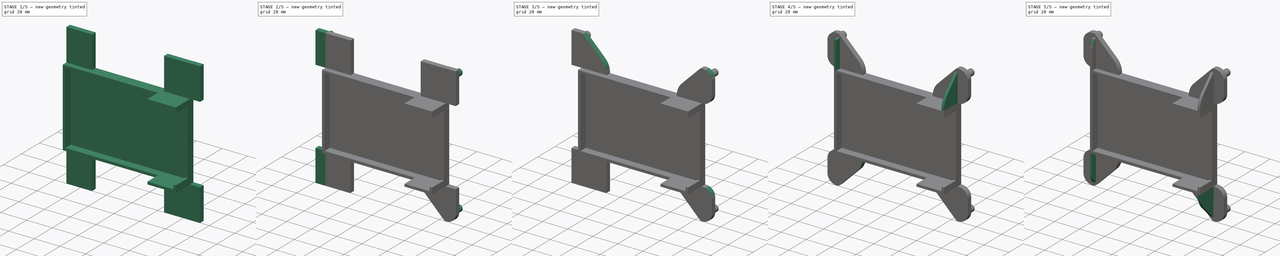
[diagram: build sequence overview — one tinted view per stage of 5, left to right]
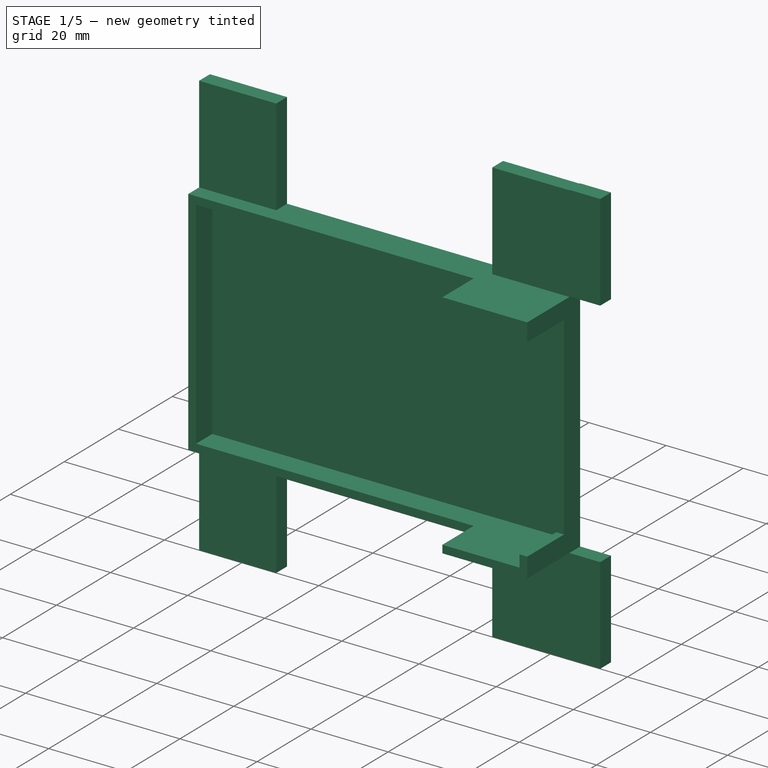
[diagram: stage 1 of 5 — iso view after this stage's code; geometry added in this stage tinted green]
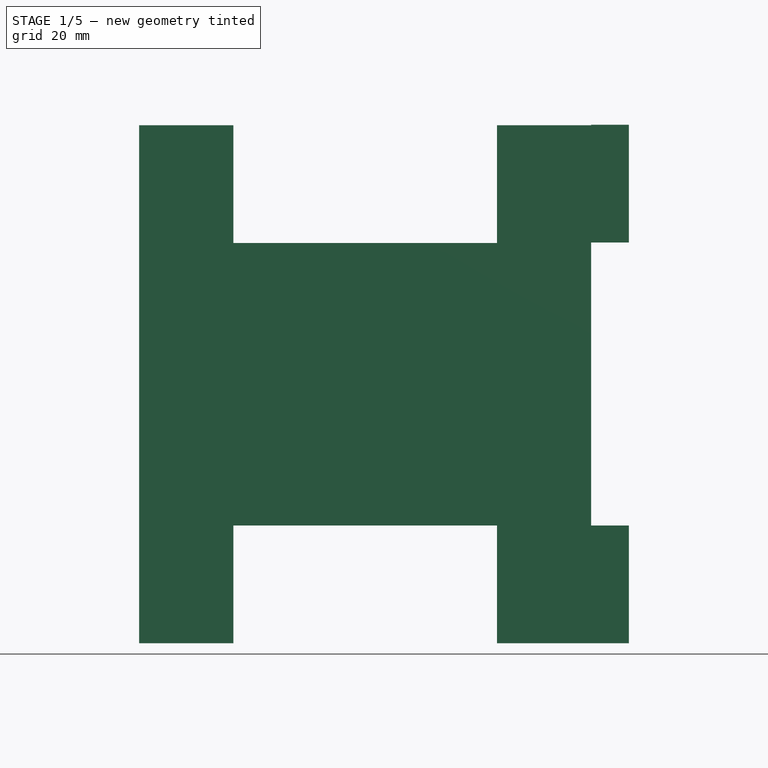
[diagram: stage 1 of 5 — front view after this stage's code; geometry added in this stage tinted green]
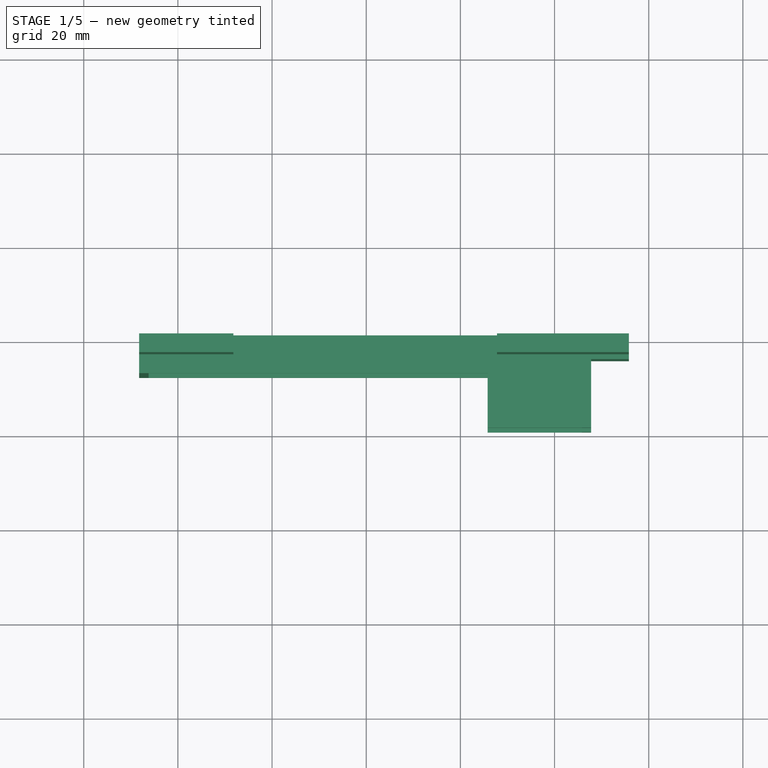
[diagram: stage 1 of 5 — top view after this stage's code; geometry added in this stage tinted green]
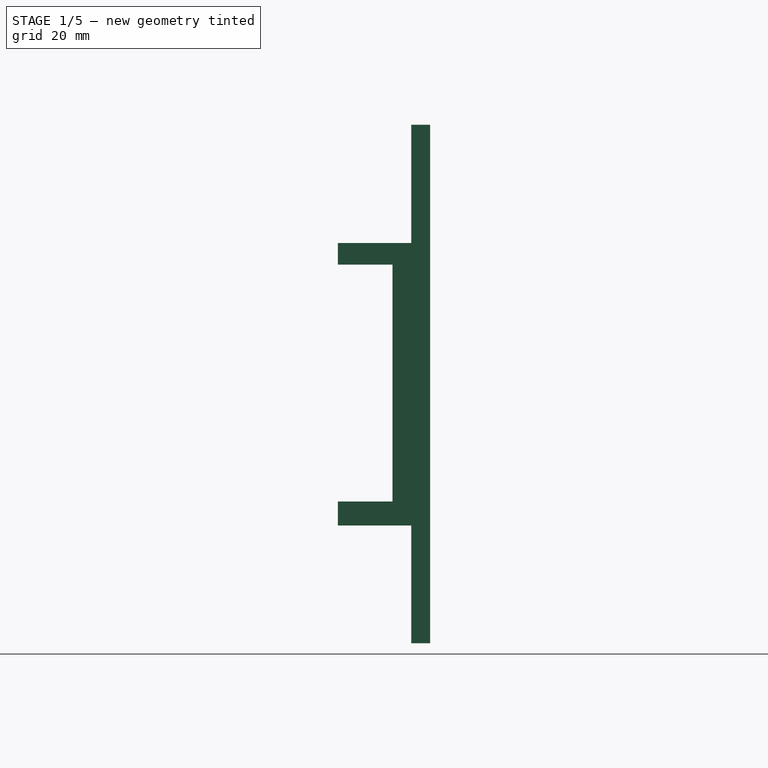
[diagram: stage 1 of 5 — right view after this stage's code; geometry added in this stage tinted green]
FCSTD DOCUMENT  (FreeCAD 0.19R24291 (Git))
Label: case_mount_prot_3
License: All rights reserved
LicenseURL: http://en.wikipedia.org/wiki/All_rights_reserved
objects: PartDesign::Fillet×26, Sketcher::SketchObject×13, PartDesign::Pad×8, PartDesign::Chamfer×8, PartDesign::Pocket×5, PartDesign::Body×1
note: 108 computed .brp shape members not serialized (recipe doc carries the construction recipe); baked Part::Feature solids carry a one-line shape summary decoded from their .brp

FEATURE [Sketcher::SketchObject] Sketch
  FullyConstrained = false
  MapMode = 5
  Placement = pos=(0,0,0) rot=(1,0,0;1.5708rad)
  Support = -> [XZ_Plane]
  sketch-geometry (4):
    g0: LineSegment StartX=-48.227 StartY=-0.10394 StartZ=0 EndX=47.773 EndY=-0.10394 EndZ=0
    g1: LineSegment StartX=47.773 StartY=-0.10394 StartZ=0 EndX=47.773 EndY=-60.1039 EndZ=0
    g2: LineSegment StartX=47.773 StartY=-60.1039 StartZ=0 EndX=-48.227 EndY=-60.1039 EndZ=0
    g3: LineSegment StartX=-48.227 StartY=-60.1039 StartZ=0 EndX=-48.227 EndY=-0.10394 EndZ=0
  constraints (10):
    c: Coincident(g0,g1)
    c: Coincident(g1,g2)
    c: Coincident(g2,g3)
    c: Coincident(g3,g0)
    c: Horizontal(g0)
    c: Horizontal(g2)
    c: Vertical(g1)
    c: Vertical(g3)
    c: DistanceX(g0,g0) = 96
    c: DistanceY(g1,g1) = 60
FEATURE [PartDesign::Pad] Pad
  Direction = (1,1,1)
  Length = 30
  Length2 = 100
  Placement = pos=(0,0,0) rot=(1,0,0;1.5708rad)
  Profile = -> Sketch
  Type = 0
FEATURE [Sketcher::SketchObject] Sketch001
  ExternalGeometry = -> [Pad]
  FullyConstrained = true
  MapMode = 5
  Placement = pos=(0,-30,2e-14) rot=(1,0,0;1.5708rad)
  Support = -> [Pad]
  sketch-geometry (4):
    g0: LineSegment StartX=-46.227 StartY=-2.10394 StartZ=0 EndX=45.773 EndY=-2.10394 EndZ=0
    g1: LineSegment StartX=45.773 StartY=-2.10394 StartZ=0 EndX=45.773 EndY=-58.1039 EndZ=0
    g2: LineSegment StartX=45.773 StartY=-58.1039 StartZ=0 EndX=-46.227 EndY=-58.1039 EndZ=0
    g3: LineSegment StartX=-46.227 StartY=-58.1039 StartZ=0 EndX=-46.227 EndY=-2.10394 EndZ=0
  constraints (12):
    c: Coincident(g0,g1)
    c: Coincident(g1,g2)
    c: Coincident(g2,g3)
    c: Coincident(g3,g0)
    c: Horizontal(g0)
    c: Horizontal(g2)
    c: Vertical(g1)
    c: Vertical(g3)
    c: DistanceY(g0,g-3) = 2
    c: DistanceX(g0,g-3) = 2
    c: DistanceX(g-3,g0) = 2
    c: DistanceY(g-4,g2) = 2
FEATURE [PartDesign::Pocket] Pocket
  BaseFeature = -> Pad
  Length = 28
  Length2 = 100
  Placement = pos=(0,0,0) rot=(1,0,0;1.5708rad)
  Profile = -> Sketch001
  Type = 0
FEATURE [Sketcher::SketchObject] Sketch002
  ExternalGeometry = -> [Pocket]
  FullyConstrained = true
  MapMode = 5
  Placement = pos=(0,-6.67e-14,-60.1039) rot=(1,0,0;3.14159rad)
  Support = -> [Pocket]
  sketch-geometry (4):
    g0: LineSegment StartX=-48.227 StartY=30 StartZ=0 EndX=25.773 EndY=30 EndZ=0
    g1: LineSegment StartX=25.773 StartY=30 StartZ=0 EndX=25.773 EndY=8 EndZ=0
    g2: LineSegment StartX=25.773 StartY=8 StartZ=0 EndX=-48.227 EndY=8 EndZ=0
    g3: LineSegment StartX=-48.227 StartY=8 StartZ=0 EndX=-48.227 EndY=30 EndZ=0
  constraints (12):
    c: Coincident(g0,g1)
    c: Coincident(g1,g2)
    c: Coincident(g2,g3)
    c: Coincident(g3,g0)
    c: Horizontal(g0)
    c: Horizontal(g2)
    c: Vertical(g1)
    c: Vertical(g3)
    c: DistanceY(g0,g-3) = 0
    c: DistanceX(g-4,g2) = 0
    c: DistanceY(g-4,g2) = 8
    c: DistanceX(g0,g-3) = 22
FEATURE [PartDesign::Pocket] Pocket001
  BaseFeature = -> Pocket
  Length = 60
  Length2 = 100
  Placement = pos=(0,0,0) rot=(1,0,0;1.5708rad)
  Profile = -> Sketch002
  Type = 0
FEATURE [Sketcher::SketchObject] Sketch003
  ExternalGeometry = -> [Pocket001]
  FullyConstrained = true
  MapMode = 5
  Placement = pos=(0,-9.34e-14,-60.1039) rot=(1,0,0;3.14159rad)
  Support = -> [Pocket001]
  sketch-geometry (4):
    g0: LineSegment StartX=25.773 StartY=30 StartZ=0 EndX=47.773 EndY=30 EndZ=0
    g1: LineSegment StartX=47.773 StartY=30 StartZ=0 EndX=47.773 EndY=26 EndZ=0
    g2: LineSegment StartX=47.773 StartY=26 StartZ=0 EndX=25.773 EndY=26 EndZ=0
    g3: LineSegment StartX=25.773 StartY=26 StartZ=0 EndX=25.773 EndY=30 EndZ=0
  constraints (12):
    c: Coincident(g0,g1)
    c: Coincident(g1,g2)
    c: Coincident(g2,g3)
    c: Coincident(g3,g0)
    c: Horizontal(g0)
    c: Horizontal(g2)
    c: Vertical(g1)
    c: Vertical(g3)
    c: DistanceY(g1,g1) = 4
    c: DistanceY(g0,g-3) = 0
    c: DistanceX(g-3,g0) = 0
    c: DistanceX(g0,g-3) = 0
FEATURE [PartDesign::Pocket] Pocket002
  BaseFeature = -> Pocket001
  Length = 60
  Length2 = 100
  Placement = pos=(0,0,0) rot=(1,0,0;1.5708rad)
  Profile = -> Sketch003
  Type = 0
FEATURE [Sketcher::SketchObject] Sketch004
  ExternalGeometry = -> [Pocket002]
  FullyConstrained = true
  MapMode = 5
  Placement = pos=(47.773,0,0) rot=(0.707107,0,0.707107;3.14159rad)
  Support = -> [Pocket002]
  sketch-geometry (4):
    g0: LineSegment StartX=-55.0039 StartY=19.6 StartZ=0 EndX=-4.70394 EndY=19.6 EndZ=0
    g1: LineSegment StartX=-4.70394 StartY=19.6 StartZ=0 EndX=-4.70394 EndY=6 EndZ=0
    g2: LineSegment StartX=-4.70394 StartY=6 StartZ=0 EndX=-55.0039 EndY=6 EndZ=0
    g3: LineSegment StartX=-55.0039 StartY=6 StartZ=0 EndX=-55.0039 EndY=19.6 EndZ=0
  constraints (12):
    c: Coincident(g0,g1)
    c: Coincident(g1,g2)
    c: Coincident(g2,g3)
    c: Coincident(g3,g0)
    c: Horizontal(g0)
    c: Horizontal(g2)
    c: Vertical(g1)
    c: Vertical(g3)
    c: DistanceX(g0,g0) = 50.3
    c: DistanceX(g-3,g0) = 5.1
    c: DistanceY(g3,g3) = 13.6
    c: DistanceY(g-4,g2) = 6
FEATURE [Sketcher::SketchObject] Sketch005
  ExternalGeometry = -> [Pocket002]
  FullyConstrained = true
  MapMode = 5
  Placement = pos=(0,-1.201e-13,-60.1039) rot=(1,0,0;3.14159rad)
  Support = -> [Pocket002]
  sketch-geometry (4):
    g0: LineSegment StartX=25.773 StartY=26 StartZ=0 EndX=47.773 EndY=26 EndZ=0
    g1: LineSegment StartX=47.773 StartY=26 StartZ=0 EndX=47.773 EndY=19.6 EndZ=0
    g2: LineSegment StartX=47.773 StartY=19.6 StartZ=0 EndX=25.773 EndY=19.6 EndZ=0
    g3: LineSegment StartX=25.773 StartY=19.6 StartZ=0 EndX=25.773 EndY=26 EndZ=0
  constraints (12):
    c: Coincident(g0,g1)
    c: Coincident(g1,g2)
    c: Coincident(g2,g3)
    c: Coincident(g3,g0)
    c: Horizontal(g0)
    c: Horizontal(g2)
    c: Vertical(g1)
    c: Vertical(g3)
    c: DistanceY(g1,g1) = 6.4
    c: DistanceX(g0,g-3) = 0
    c: DistanceY(g0,g-3) = 0
    c: DistanceX(g-3,g0) = 0
FEATURE [PartDesign::Pocket] Pocket003
  BaseFeature = -> Pocket002
  Length = 60
  Length2 = 100
  Placement = pos=(0,0,0) rot=(1,0,0;1.5708rad)
  Profile = -> Sketch005
  Type = 0
FEATURE [PartDesign::Pocket] Pocket004
  BaseFeature = -> Pocket003
  Length = 5
  Length2 = 100
  Placement = pos=(0,0,0) rot=(1,0,0;1.5708rad)
  Profile = -> Sketch004
  Type = 0
FEATURE [Sketcher::SketchObject] Sketch006
  ExternalGeometry = -> [Pocket004]
  FullyConstrained = true
  MapMode = 5
  Placement = pos=(0,-3e-16,-0.10394) rot=(0,0,1;3.14159rad)
  Support = -> [Pocket004]
  sketch-geometry (8):
    g0: LineSegment StartX=-47.773 StartY=4 StartZ=0 EndX=-27.773 EndY=4 EndZ=0
    g1: LineSegment StartX=-27.773 StartY=4 StartZ=0 EndX=-27.773 EndY=0 EndZ=0
    g2: LineSegment StartX=-27.773 StartY=0 StartZ=0 EndX=-47.773 EndY=0 EndZ=0
    g3: LineSegment StartX=-47.773 StartY=0 StartZ=0 EndX=-47.773 EndY=4 EndZ=0
    g4: LineSegment StartX=48.227 StartY=4 StartZ=0 EndX=28.227 EndY=4 EndZ=0
    g5: LineSegment StartX=28.227 StartY=4 StartZ=0 EndX=28.227 EndY=0 EndZ=0
    g6: LineSegment StartX=28.227 StartY=0 StartZ=0 EndX=48.227 EndY=0 EndZ=0
    g7: LineSegment StartX=48.227 StartY=0 StartZ=0 EndX=48.227 EndY=4 EndZ=0
  constraints (24):
    c: Coincident(g0,g1)
    c: Coincident(g1,g2)
    c: Coincident(g2,g3)
    c: Coincident(g3,g0)
    c: Horizontal(g0)
    c: Horizontal(g2)
    c: Vertical(g1)
    c: Vertical(g3)
    c: Coincident(g4,g5)
    c: Coincident(g5,g6)
    c: Coincident(g6,g7)
    c: Coincident(g7,g4)
    c: Horizontal(g4)
    c: Horizontal(g6)
    c: Vertical(g5)
    c: Vertical(g7)
    c: DistanceX(g0,g0) = 20
    c: DistanceY(g1,g1) = 4
    c: DistanceX(g-3,g2) = 0
    c: DistanceY(g-3,g2) = 0
    c: DistanceY(g7,g7) = 4
    c: DistanceX(g4,g4) = 20
    c: DistanceX(g6,g-3) = 0
    c: DistanceY(g-3,g6) = 0
FEATURE [PartDesign::Pad] Pad001
  BaseFeature = -> Pocket004
  Direction = (1,1,1)
  Length = 25
  Length2 = 100
  Placement = pos=(0,0,0) rot=(1,0,0;1.5708rad)
  Profile = -> Sketch006
  Type = 0
FEATURE [Sketcher::SketchObject] Sketch007
  ExternalGeometry = -> [Pad001]
  FullyConstrained = true
  MapMode = 5
  Placement = pos=(0,-2.002e-13,-60.1039) rot=(1,0,0;3.14159rad)
  Support = -> [Pad001]
  sketch-geometry (8):
    g0: LineSegment StartX=-48.227 StartY=4 StartZ=0 EndX=-28.227 EndY=4 EndZ=0
    g1: LineSegment StartX=-28.227 StartY=4 StartZ=0 EndX=-28.227 EndY=0 EndZ=0
    g2: LineSegment StartX=-28.227 StartY=0 StartZ=0 EndX=-48.227 EndY=0 EndZ=0
    g3: LineSegment StartX=-48.227 StartY=0 StartZ=0 EndX=-48.227 EndY=4 EndZ=0
    g4: LineSegment StartX=27.773 StartY=4 StartZ=0 EndX=47.773 EndY=4 EndZ=0
    g5: LineSegment StartX=47.773 StartY=4 StartZ=0 EndX=47.773 EndY=0 EndZ=0
    g6: LineSegment StartX=47.773 StartY=0 StartZ=0 EndX=27.773 EndY=0 EndZ=0
    g7: LineSegment StartX=27.773 StartY=0 StartZ=0 EndX=27.773 EndY=4 EndZ=0
  constraints (24):
    c: Coincident(g0,g1)
    c: Coincident(g1,g2)
    c: Coincident(g2,g3)
    c: Coincident(g3,g0)
    c: Horizontal(g0)
    c: Horizontal(g2)
    c: Vertical(g1)
    c: Vertical(g3)
    c: Coincident(g4,g5)
    c: Coincident(g5,g6)
    c: Coincident(g6,g7)
    c: Coincident(g7,g4)
    c: Horizontal(g4)
    c: Horizontal(g6)
    c: Vertical(g5)
    c: Vertical(g7)
    c: DistanceY(g5,g5) = 4
    c: DistanceX(g4,g4) = 20
    c: DistanceY(g-3,g5) = 0
    c: DistanceX(g5,g-3) = 0
    c: DistanceY(g1,g1) = 4
    c: DistanceX(g0,g0) = 20
    c: DistanceY(g-3,g2) = 0
    c: DistanceX(g-3,g2) = 0
FEATURE [PartDesign::Pad] Pad002
  BaseFeature = -> Pad001
  Direction = (1,1,1)
  Length = 25
  Length2 = 100
  Placement = pos=(0,0,0) rot=(1,0,0;1.5708rad)
  Profile = -> Sketch007
  Type = 0
FEATURE [Sketcher::SketchObject] Sketch008
  ExternalGeometry = -> [Pad002]
  FullyConstrained = true
  MapMode = 5
  Placement = pos=(47.773,0,0) rot=(0.707107,0,0.707107;3.14159rad)
  Support = -> [Pad002]
  sketch-geometry (8):
    g0: LineSegment StartX=-85.1039 StartY=4 StartZ=0 EndX=-60.1039 EndY=4 EndZ=0
    g1: LineSegment StartX=-60.1039 StartY=4 StartZ=0 EndX=-60.1039 EndY=3.011e-13 EndZ=0
    g2: LineSegment StartX=-60.1039 StartY=3.011e-13 StartZ=0 EndX=-85.1039 EndY=3.011e-13 EndZ=0
    g3: LineSegment StartX=-85.1039 StartY=3.011e-13 StartZ=0 EndX=-85.1039 EndY=4 EndZ=0
    g4: LineSegment StartX=0 StartY=4 StartZ=0 EndX=25 EndY=4 EndZ=0
    g5: LineSegment StartX=25 StartY=4 StartZ=0 EndX=25 EndY=0 EndZ=0
    g6: LineSegment StartX=25 StartY=0 StartZ=0 EndX=0 EndY=0 EndZ=0
    g7: LineSegment StartX=0 StartY=0 StartZ=0 EndX=0 EndY=4 EndZ=0
  constraints (24):
    c: Coincident(g0,g1)
    c: Coincident(g1,g2)
    c: Coincident(g2,g3)
    c: Coincident(g3,g0)
    c: Horizontal(g0)
    c: Horizontal(g2)
    c: Vertical(g1)
    c: Vertical(g3)
    c: Coincident(g4,g5)
    c: Coincident(g5,g6)
    c: Coincident(g6,g7)
    c: Coincident(g7,g4)
    c: Horizontal(g4)
    c: Horizontal(g6)
    c: Vertical(g5)
    c: Vertical(g7)
    c: PointOnObject(g5,g-1)
    c: DistanceX(g-1,g6) = 0
    c: DistanceX(g4,g4) = 25
    c: DistanceY(g5,g5) = 4
    c: DistanceX(g-3,g0) = 0
    c: DistanceY(g0,g-3) = 0
    c: DistanceY(g1,g1) = 4
    c: DistanceX(g0,g0) = 25
FEATURE [PartDesign::Pad] Pad003
  BaseFeature = -> Pad002
  Direction = (1,1,1)
  Length = 8
  Length2 = 100
  Placement = pos=(0,0,0) rot=(1,0,0;1.5708rad)
  Profile = -> Sketch008
  Type = 0
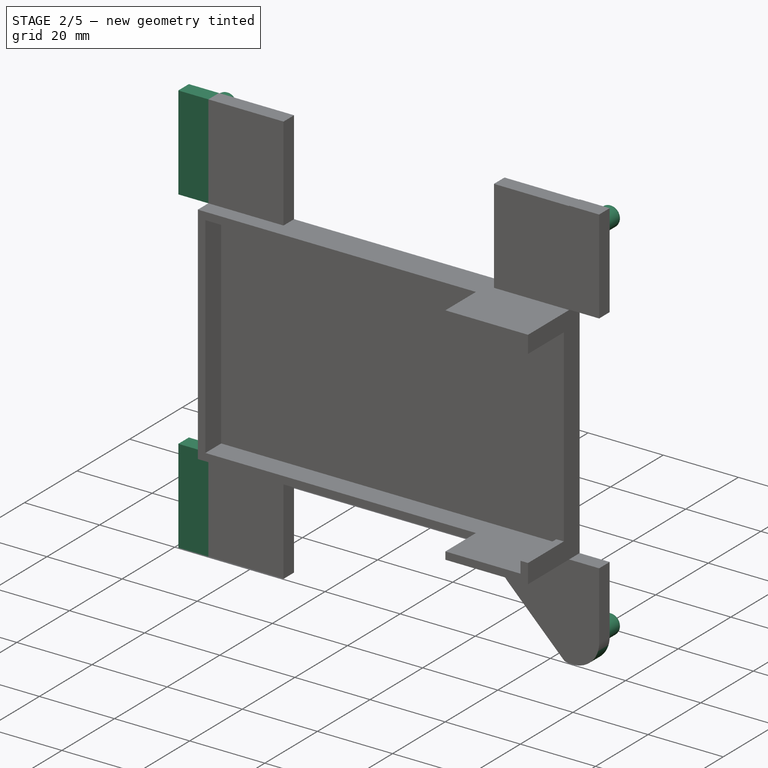
[diagram: stage 2 of 5 — iso view after this stage's code; geometry added in this stage tinted green]
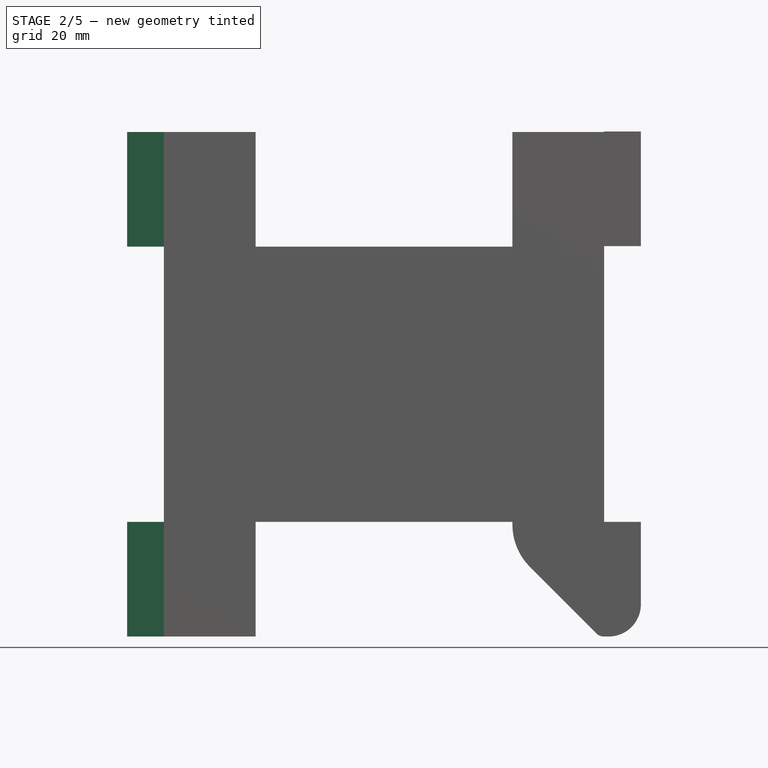
[diagram: stage 2 of 5 — front view after this stage's code; geometry added in this stage tinted green]
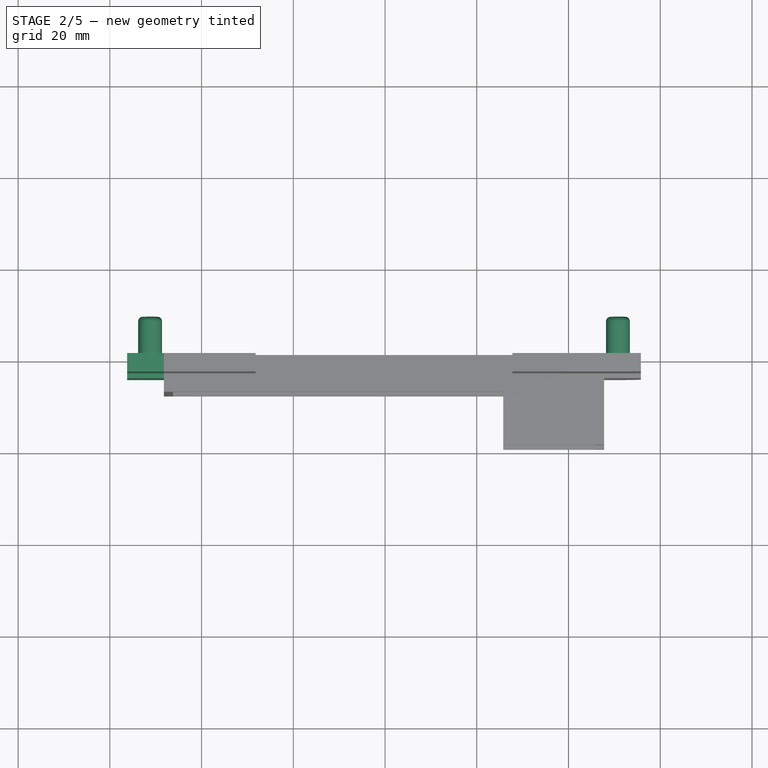
[diagram: stage 2 of 5 — top view after this stage's code; geometry added in this stage tinted green]
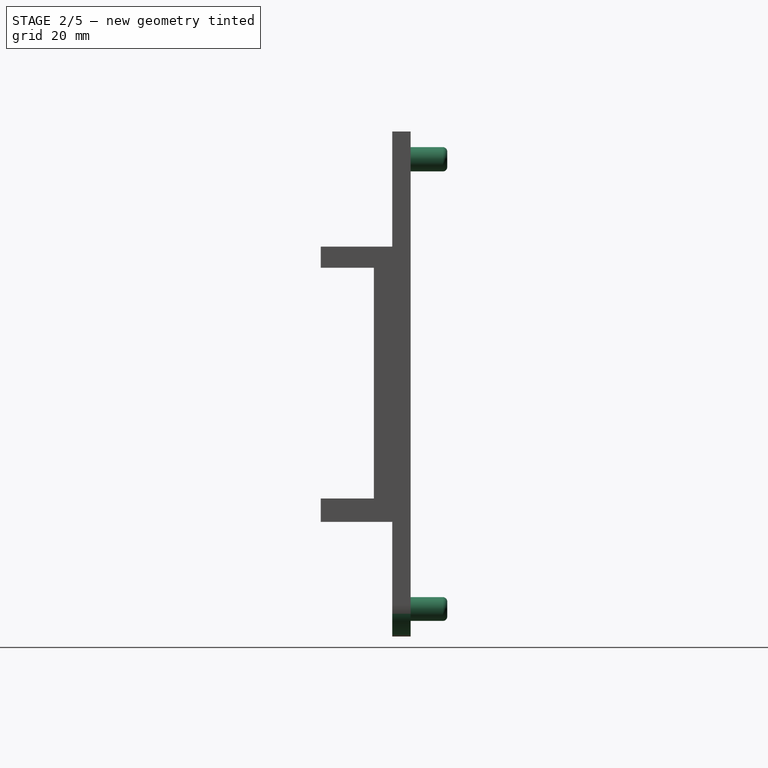
[diagram: stage 2 of 5 — right view after this stage's code; geometry added in this stage tinted green]
FEATURE [Sketcher::SketchObject] Sketch009
  ExternalGeometry = -> [Pad003]
  FullyConstrained = true
  MapMode = 5
  Placement = pos=(-48.227,0,0) rot=(0.707107,0,-0.707107;3.14159rad)
  Support = -> [Pad003]
  sketch-geometry (8):
    g0: LineSegment StartX=-24.8961 StartY=4 StartZ=0 EndX=0.10394 EndY=4 EndZ=0
    g1: LineSegment StartX=0.10394 StartY=4 StartZ=0 EndX=0.10394 EndY=-8.39e-14 EndZ=0
    g2: LineSegment StartX=0.10394 StartY=-8.39e-14 StartZ=0 EndX=-24.8961 EndY=-8.39e-14 EndZ=0
    g3: LineSegment StartX=-24.8961 StartY=-8.39e-14 StartZ=0 EndX=-24.8961 EndY=4 EndZ=0
    g4: LineSegment StartX=60.1039 StartY=4 StartZ=0 EndX=85.1039 EndY=4 EndZ=0
    g5: LineSegment StartX=85.1039 StartY=4 StartZ=0 EndX=85.1039 EndY=0 EndZ=0
    g6: LineSegment StartX=85.1039 StartY=0 StartZ=0 EndX=60.1039 EndY=0 EndZ=0
    g7: LineSegment StartX=60.1039 StartY=0 StartZ=0 EndX=60.1039 EndY=4 EndZ=0
  constraints (24):
    c: Coincident(g0,g1)
    c: Coincident(g1,g2)
    c: Coincident(g2,g3)
    c: Coincident(g3,g0)
    c: Horizontal(g0)
    c: Horizontal(g2)
    c: Vertical(g1)
    c: Vertical(g3)
    c: Coincident(g4,g5)
    c: Coincident(g5,g6)
    c: Coincident(g6,g7)
    c: Coincident(g7,g4)
    c: Horizontal(g4)
    c: Horizontal(g6)
    c: Vertical(g5)
    c: Vertical(g7)
    c: PointOnObject(g5,g-1)
    c: DistanceX(g-4,g2) = 0
    c: DistanceY(g-4,g2) = 0
    c: DistanceX(g0,g0) = 25
    c: DistanceY(g1,g1) = 4
    c: DistanceX(g-3,g6) = 0
    c: DistanceX(g4,g4) = 25
    c: DistanceY(g7,g7) = 4
FEATURE [PartDesign::Pad] Pad004
  BaseFeature = -> Pad003
  Direction = (1,1,1)
  Length = 8
  Length2 = 100
  Placement = pos=(0,0,0) rot=(1,0,0;1.5708rad)
  Profile = -> Sketch009
  Type = 0
FEATURE [Sketcher::SketchObject] Sketch010
  ExternalGeometry = -> [Pad004]
  FullyConstrained = true
  MapMode = 5
  Placement = pos=(0,0,0) rot=(-1,0,0;1.5708rad)
  Support = -> [Pad004]
  sketch-geometry (4):
    g0: Circle CenterX=50.773 CenterY=79.1039 CenterZ=0 NormalX=0 NormalY=0 NormalZ=1 AngleXU=0 Radius=2.6
    g1: Circle CenterX=50.773 CenterY=-19 CenterZ=0 NormalX=0 NormalY=0 NormalZ=1 AngleXU=0 Radius=2.6
    g2: Circle CenterX=-51.227 CenterY=-18.8961 CenterZ=0 NormalX=0 NormalY=0 NormalZ=1 AngleXU=0 Radius=2.6
    g3: Circle CenterX=-51.227 CenterY=79.1039 CenterZ=0 NormalX=0 NormalY=0 NormalZ=1 AngleXU=0 Radius=2.6
  constraints (12):
    c: Radius(g0) = 2.6
    c: Radius(g1) = 2.6
    c: Radius(g2) = 2.6
    c: Radius(g3) = 2.6
    c: DistanceX(g-10,g2) = 5
    c: DistanceY(g-10,g2) = 6
    c: DistanceY(g-4,g1) = 6
    c: DistanceX(g1,g-4) = 5
    c: DistanceY(g0,g-6) = 6
    c: DistanceX(g0,g-6) = 5
    c: DistanceX(g-8,g3) = 5
    c: DistanceY(g3,g-8) = 6
FEATURE [PartDesign::Pad] Pad005
  BaseFeature = -> Pad004
  Direction = (1,1,1)
  Length = 8
  Length2 = 100
  Placement = pos=(0,0,0) rot=(1,0,0;1.5708rad)
  Profile = -> Sketch010
  Type = 0
FEATURE [PartDesign::Fillet] Fillet
  Base = -> Pad005 [Edge142]
  BaseFeature = -> Pad005
  Placement = pos=(0,0,0) rot=(1,0,0;1.5708rad)
  Radius = 1
  SupportTransform = false
FEATURE [PartDesign::Fillet] Fillet001
  Base = -> Fillet [Edge143]
  BaseFeature = -> Fillet
  Placement = pos=(0,0,0) rot=(1,0,0;1.5708rad)
  Radius = 1
  SupportTransform = false
FEATURE [PartDesign::Fillet] Fillet002
  Base = -> Fillet001 [Edge148]
  BaseFeature = -> Fillet001
  Placement = pos=(0,0,0) rot=(1,0,0;1.5708rad)
  Radius = 1
  SupportTransform = false
FEATURE [PartDesign::Fillet] Fillet003
  Base = -> Fillet002 [Edge136]
  BaseFeature = -> Fillet002
  Placement = pos=(0,0,0) rot=(1,0,0;1.5708rad)
  Radius = 1
  SupportTransform = false
FEATURE [PartDesign::Chamfer] Chamfer
  Angle = 45
  Base = -> Fillet003 [Edge111]
  BaseFeature = -> Fillet003
  ChamferType = 0
  FlipDirection = false
  Placement = pos=(0,0,0) rot=(1,0,0;1.5708rad)
  Size = 19
  Size2 = 1
  SupportTransform = false
FEATURE [PartDesign::Fillet] Fillet004
  Base = -> Chamfer [Edge63]
  BaseFeature = -> Chamfer
  Placement = pos=(0,0,0) rot=(1,0,0;1.5708rad)
  Radius = 7
  SupportTransform = false
FEATURE [PartDesign::Fillet] Fillet005
  Base = -> Fillet004 [Edge33]
  BaseFeature = -> Fillet004
  Placement = pos=(0,0,0) rot=(1,0,0;1.5708rad)
  Radius = 2
  SupportTransform = false
FEATURE [PartDesign::Fillet] Fillet006
  Base = -> Fillet005 [Edge8]
  BaseFeature = -> Fillet005
  Placement = pos=(0,0,0) rot=(1,0,0;1.5708rad)
  Radius = 13
  SupportTransform = false
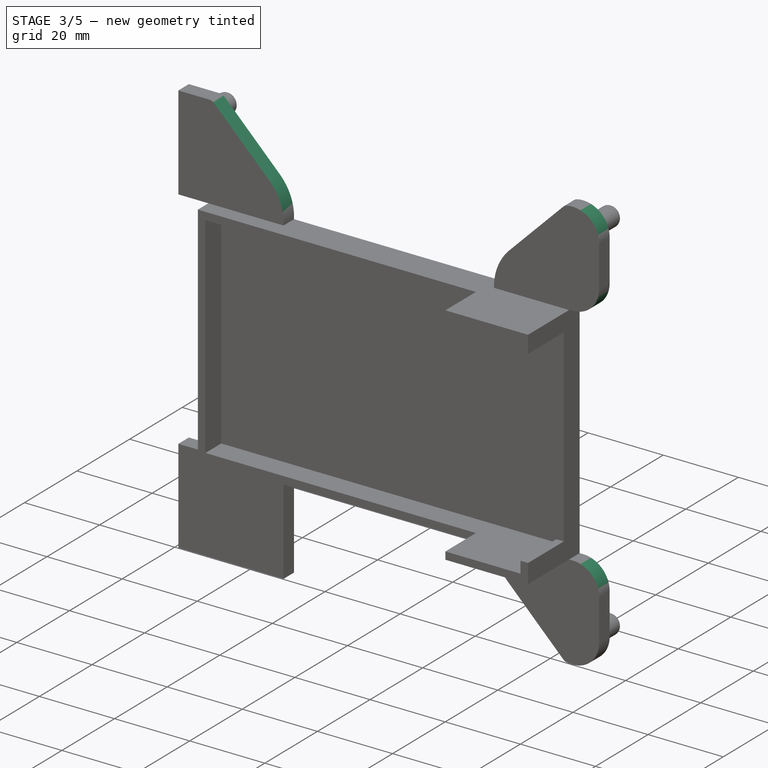
[diagram: stage 3 of 5 — iso view after this stage's code; geometry added in this stage tinted green]
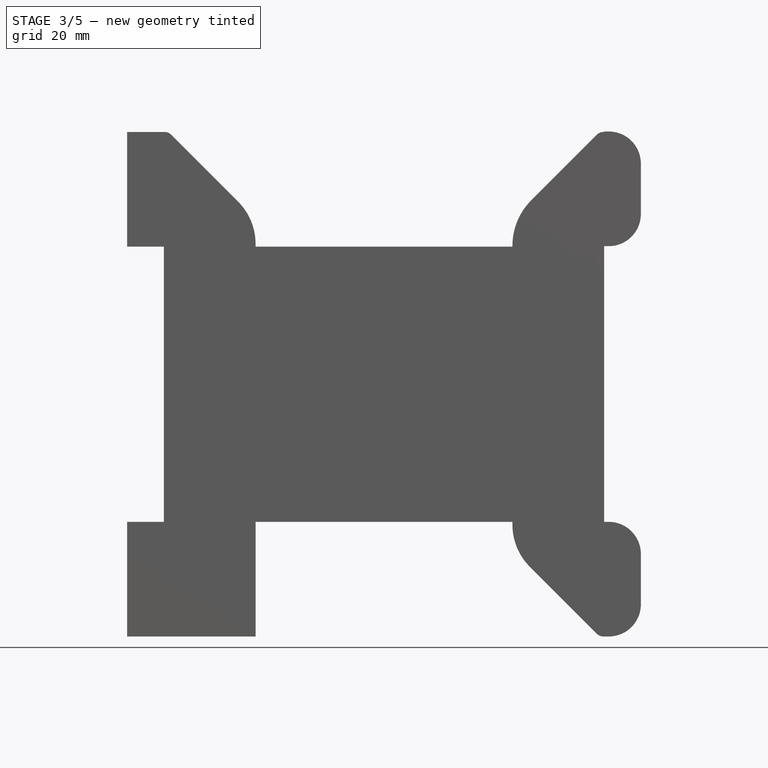
[diagram: stage 3 of 5 — front view after this stage's code; geometry added in this stage tinted green]
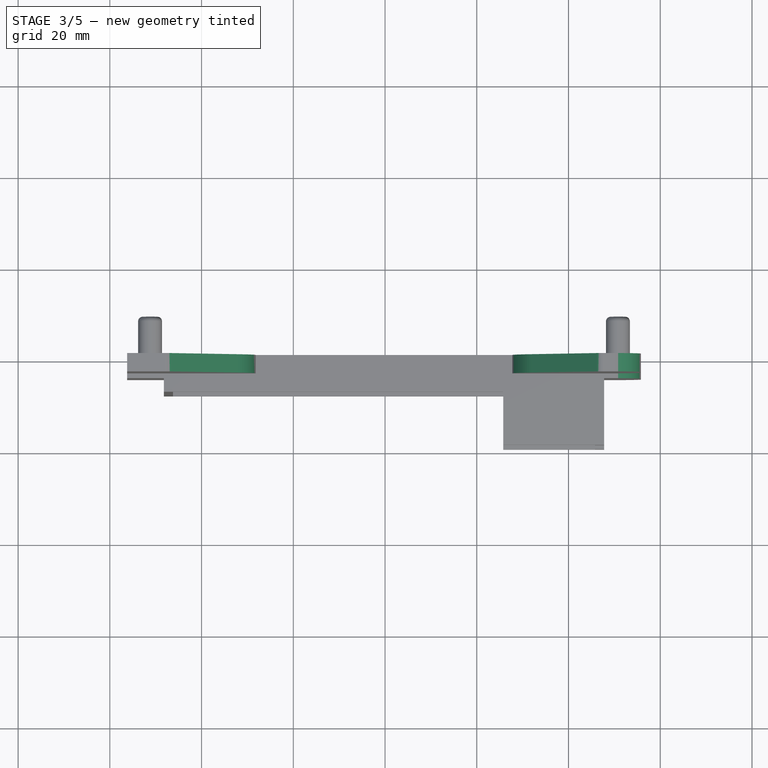
[diagram: stage 3 of 5 — top view after this stage's code; geometry added in this stage tinted green]
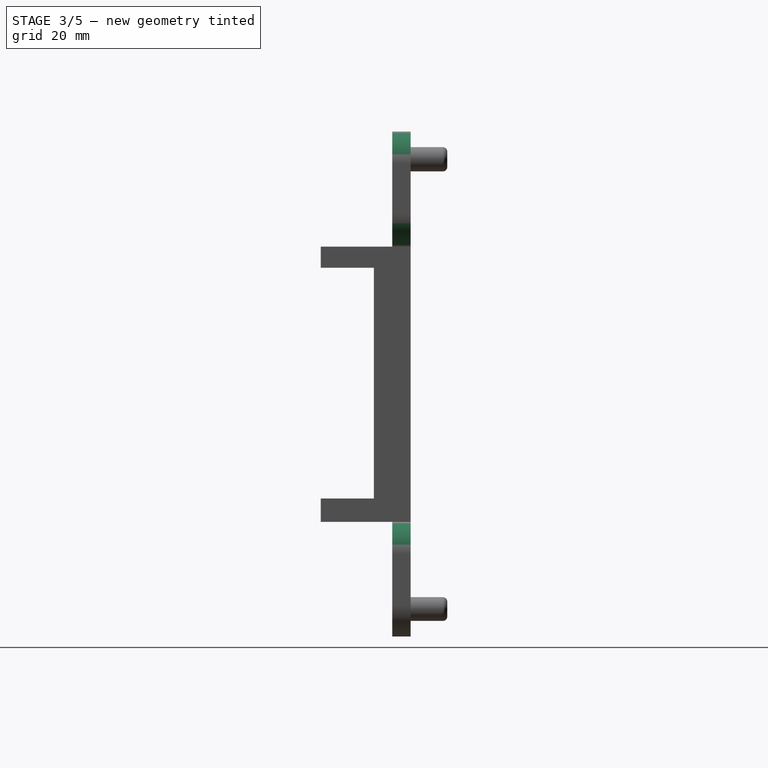
[diagram: stage 3 of 5 — right view after this stage's code; geometry added in this stage tinted green]
FEATURE [PartDesign::Fillet] Fillet007
  Base = -> Fillet006 [Edge73]
  BaseFeature = -> Fillet006
  Placement = pos=(0,0,0) rot=(1,0,0;1.5708rad)
  Radius = 7
  SupportTransform = false
FEATURE [PartDesign::Chamfer] Chamfer001
  Angle = 45
  Base = -> Fillet007 [Edge122]
  BaseFeature = -> Fillet007
  ChamferType = 0
  FlipDirection = false
  Placement = pos=(0,0,0) rot=(1,0,0;1.5708rad)
  Size = 19
  Size2 = 1
  SupportTransform = false
FEATURE [PartDesign::Fillet] Fillet008
  Base = -> Chamfer001 [Edge8]
  BaseFeature = -> Chamfer001
  Placement = pos=(0,0,0) rot=(1,0,0;1.5708rad)
  Radius = 14
  SupportTransform = false
FEATURE [PartDesign::Fillet] Fillet009
  Base = -> Fillet008 [Edge21]
  BaseFeature = -> Fillet008
  Placement = pos=(0,0,0) rot=(1,0,0;1.5708rad)
  Radius = 2
  SupportTransform = false
FEATURE [PartDesign::Fillet] Fillet010
  Base = -> Fillet009 [Edge47]
  BaseFeature = -> Fillet009
  Placement = pos=(0,0,0) rot=(1,0,0;1.5708rad)
  Radius = 7
  SupportTransform = false
FEATURE [PartDesign::Fillet] Fillet011
  Base = -> Fillet010 [Edge16]
  BaseFeature = -> Fillet010
  Placement = pos=(0,0,0) rot=(1,0,0;1.5708rad)
  Radius = 7
  SupportTransform = false
FEATURE [PartDesign::Chamfer] Chamfer002
  Angle = 45
  Base = -> Fillet011 [Edge116]
  BaseFeature = -> Fillet011
  ChamferType = 0
  FlipDirection = false
  Placement = pos=(0,0,0) rot=(1,0,0;1.5708rad)
  Size = 19
  Size2 = 1
  SupportTransform = false
FEATURE [PartDesign::Fillet] Fillet012
  Base = -> Chamfer002 [Edge7]
  BaseFeature = -> Chamfer002
  Placement = pos=(0,0,0) rot=(1,0,0;1.5708rad)
  Radius = 13
  SupportTransform = false
FEATURE [PartDesign::Fillet] Fillet013
  Base = -> Fillet012 [Edge20]
  BaseFeature = -> Fillet012
  Placement = pos=(0,0,0) rot=(1,0,0;1.5708rad)
  Radius = 2
  SupportTransform = false
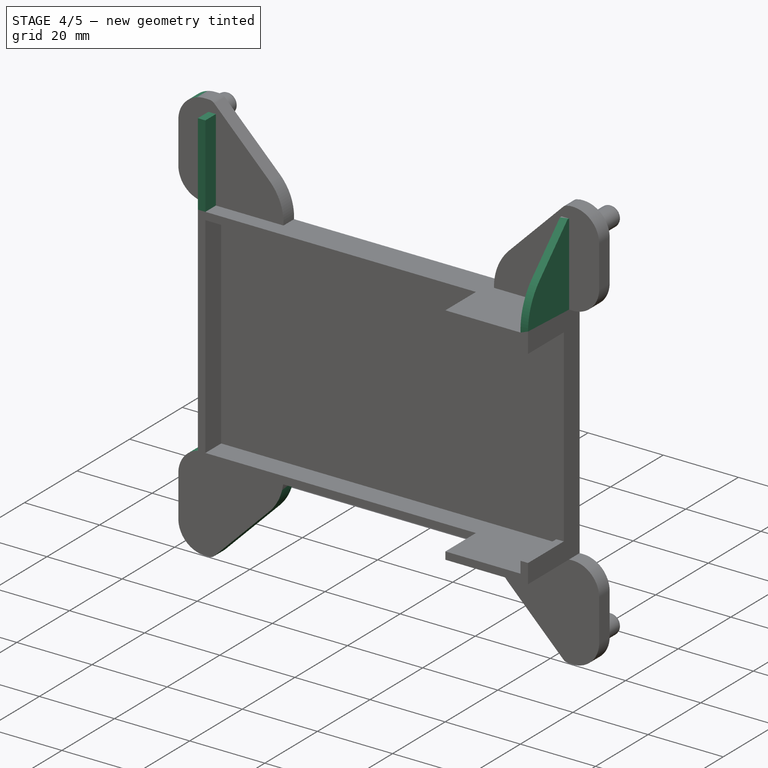
[diagram: stage 4 of 5 — iso view after this stage's code; geometry added in this stage tinted green]
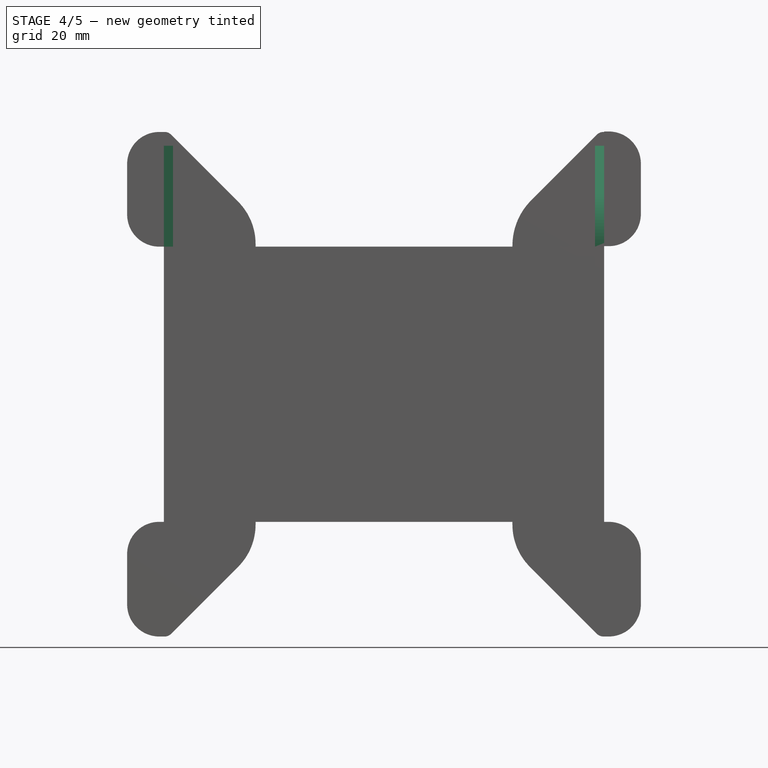
[diagram: stage 4 of 5 — front view after this stage's code; geometry added in this stage tinted green]
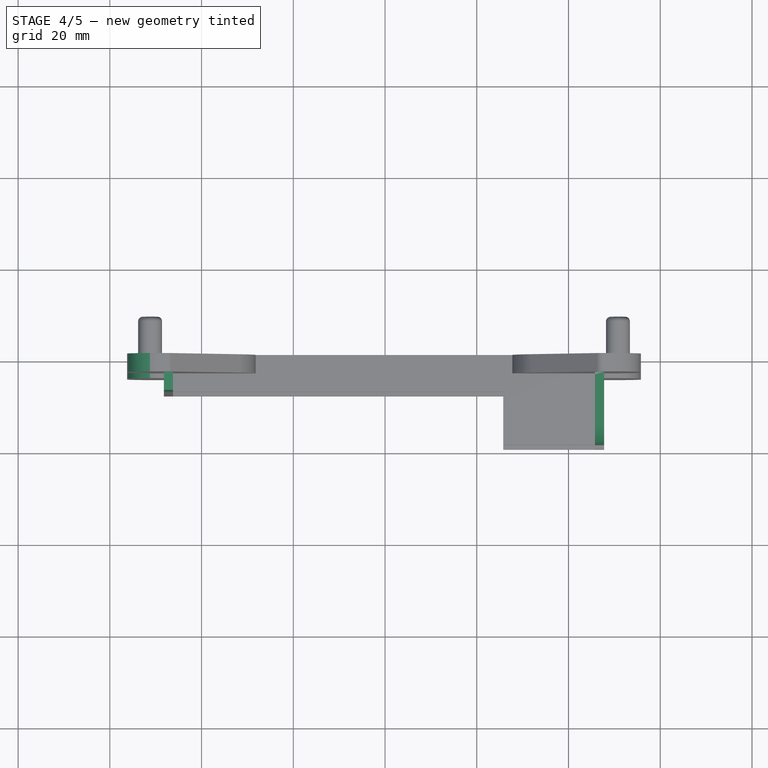
[diagram: stage 4 of 5 — top view after this stage's code; geometry added in this stage tinted green]
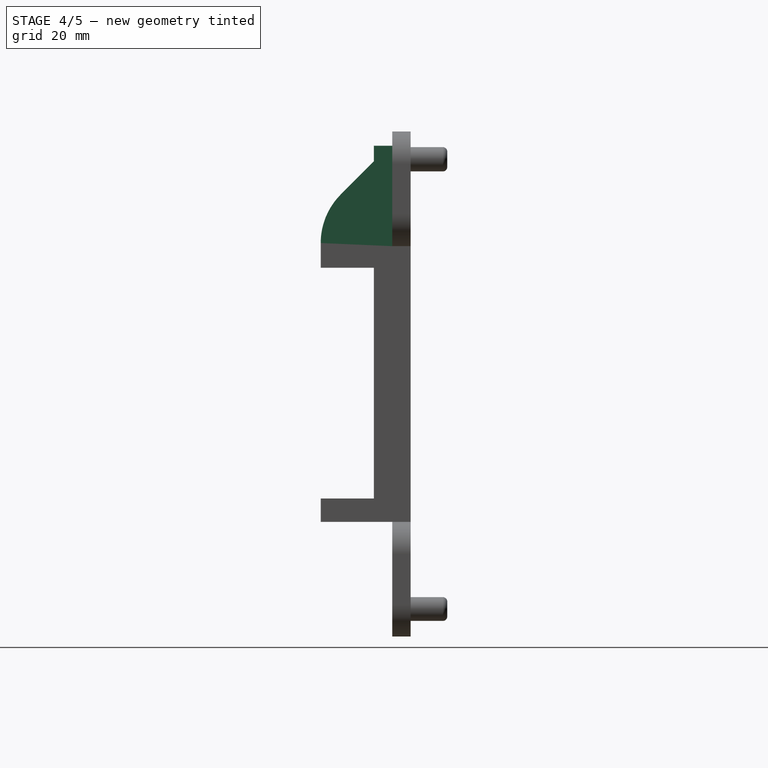
[diagram: stage 4 of 5 — right view after this stage's code; geometry added in this stage tinted green]
FEATURE [PartDesign::Fillet] Fillet014
  Base = -> Fillet013 [Edge33]
  BaseFeature = -> Fillet013
  Placement = pos=(0,0,0) rot=(1,0,0;1.5708rad)
  Radius = 7
  SupportTransform = false
FEATURE [PartDesign::Fillet] Fillet015
  Base = -> Fillet014 [Edge9]
  BaseFeature = -> Fillet014
  Placement = pos=(0,0,0) rot=(1,0,0;1.5708rad)
  Radius = 7
  SupportTransform = false
FEATURE [PartDesign::Fillet] Fillet016
  Base = -> Fillet015 [Edge66]
  BaseFeature = -> Fillet015
  Placement = pos=(0,0,0) rot=(1,0,0;1.5708rad)
  Radius = 7
  SupportTransform = false
FEATURE [PartDesign::Fillet] Fillet017
  Base = -> Fillet016 [Edge20]
  BaseFeature = -> Fillet016
  Placement = pos=(0,0,0) rot=(1,0,0;1.5708rad)
  Radius = 7
  SupportTransform = false
FEATURE [PartDesign::Chamfer] Chamfer003
  Angle = 45
  Base = -> Fillet017 [Edge26]
  BaseFeature = -> Fillet017
  ChamferType = 0
  FlipDirection = false
  Placement = pos=(0,0,0) rot=(1,0,0;1.5708rad)
  Size = 19
  Size2 = 1
  SupportTransform = false
FEATURE [PartDesign::Fillet] Fillet018
  Base = -> Chamfer003 [Edge10]
  BaseFeature = -> Chamfer003
  Placement = pos=(0,0,0) rot=(1,0,0;1.5708rad)
  Radius = 2
  SupportTransform = false
FEATURE [PartDesign::Fillet] Fillet019
  Base = -> Fillet018 [Edge9]
  BaseFeature = -> Fillet018
  Placement = pos=(0,0,0) rot=(1,0,0;1.5708rad)
  Radius = 13
  SupportTransform = false
FEATURE [Sketcher::SketchObject] Sketch011
  ExternalGeometry = -> [Fillet019]
  FullyConstrained = true
  MapMode = 5
  Placement = pos=(0,-5e-16,-0.10394) rot=(0,0,1;3.14159rad)
  Support = -> [Fillet019]
  sketch-geometry (8):
    g0: LineSegment StartX=-47.773 StartY=19.6 StartZ=0 EndX=-45.773 EndY=19.6 EndZ=0
    g1: LineSegment StartX=-45.773 StartY=19.6 StartZ=0 EndX=-45.773 EndY=4 EndZ=0
    g2: LineSegment StartX=-45.773 StartY=4 StartZ=0 EndX=-47.773 EndY=4 EndZ=0
    g3: LineSegment StartX=-47.773 StartY=4 StartZ=0 EndX=-47.773 EndY=19.6 EndZ=0
    g4: LineSegment StartX=46.227 StartY=8 StartZ=0 EndX=48.227 EndY=8 EndZ=0
    g5: LineSegment StartX=48.227 StartY=8 StartZ=0 EndX=48.227 EndY=4 EndZ=0
    g6: LineSegment StartX=48.227 StartY=4 StartZ=0 EndX=46.227 EndY=4 EndZ=0
    g7: LineSegment StartX=46.227 StartY=4 StartZ=0 EndX=46.227 EndY=8 EndZ=0
  constraints (24):
    c: Coincident(g0,g1)
    c: Coincident(g1,g2)
    c: Coincident(g2,g3)
    c: Coincident(g3,g0)
    c: Horizontal(g0)
    c: Horizontal(g2)
    c: Vertical(g1)
    c: Vertical(g3)
    c: DistanceX(g2,g2) = 2
    c: DistanceY(g0,g-4) = 0
    c: DistanceX(g-4,g0) = 0
    c: DistanceY(g-3,g2) = 0
    c: Coincident(g4,g5)
    c: Coincident(g5,g6)
    c: Coincident(g6,g7)
    c: Coincident(g7,g4)
    c: Horizontal(g4)
    c: Horizontal(g6)
    c: Vertical(g5)
    c: Vertical(g7)
    c: DistanceY(g4,g-6) = 0
    c: DistanceX(g6,g6) = 2
    c: DistanceX(g5,g-5) = 0
    c: DistanceY(g-5,g5) = 0
FEATURE [PartDesign::Pad] Pad006
  BaseFeature = -> Fillet019
  Direction = (1,1,1)
  Length = 22
  Length2 = 100
  Placement = pos=(0,0,0) rot=(1,0,0;1.5708rad)
  Profile = -> Sketch011
  Type = 0
FEATURE [PartDesign::Chamfer] Chamfer004
  Angle = 45
  Base = -> Pad006 [Edge216]
  BaseFeature = -> Pad006
  ChamferType = 0
  FlipDirection = false
  Placement = pos=(0,0,0) rot=(1,0,0;1.5708rad)
  Size = 15
  Size2 = 1
  SupportTransform = false
FEATURE [PartDesign::Fillet] Fillet020
  Base = -> Chamfer004 [Edge7]
  BaseFeature = -> Chamfer004
  Placement = pos=(0,0,0) rot=(1,0,0;1.5708rad)
  Radius = 15
  SupportTransform = false
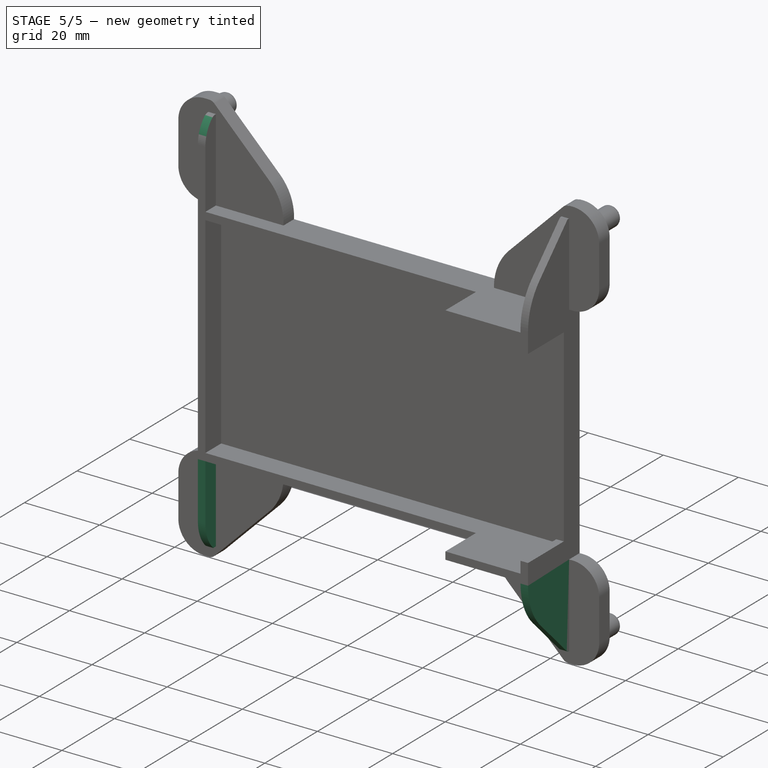
[diagram: stage 5 of 5 — iso view after this stage's code; geometry added in this stage tinted green]
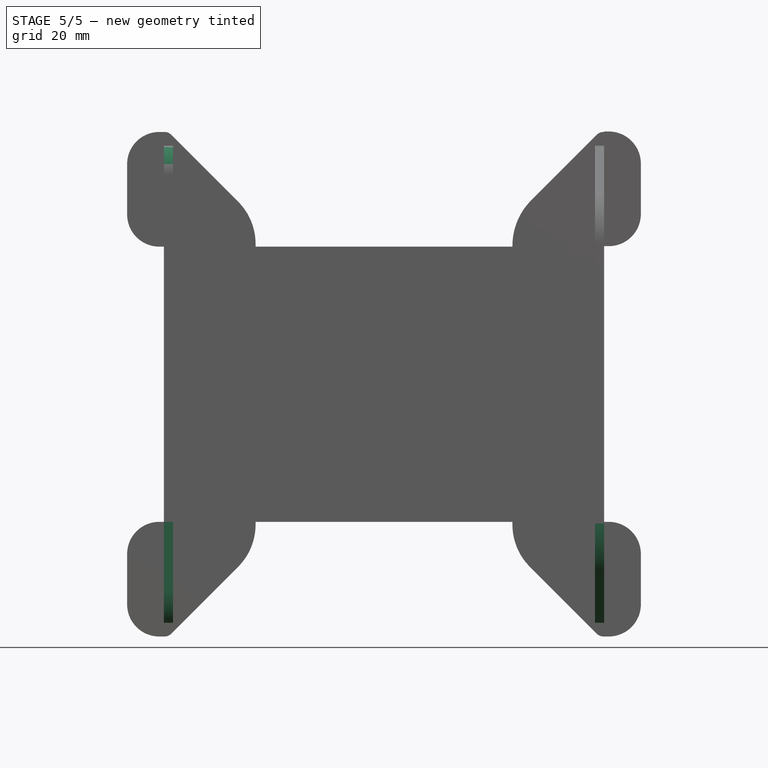
[diagram: stage 5 of 5 — front view after this stage's code; geometry added in this stage tinted green]
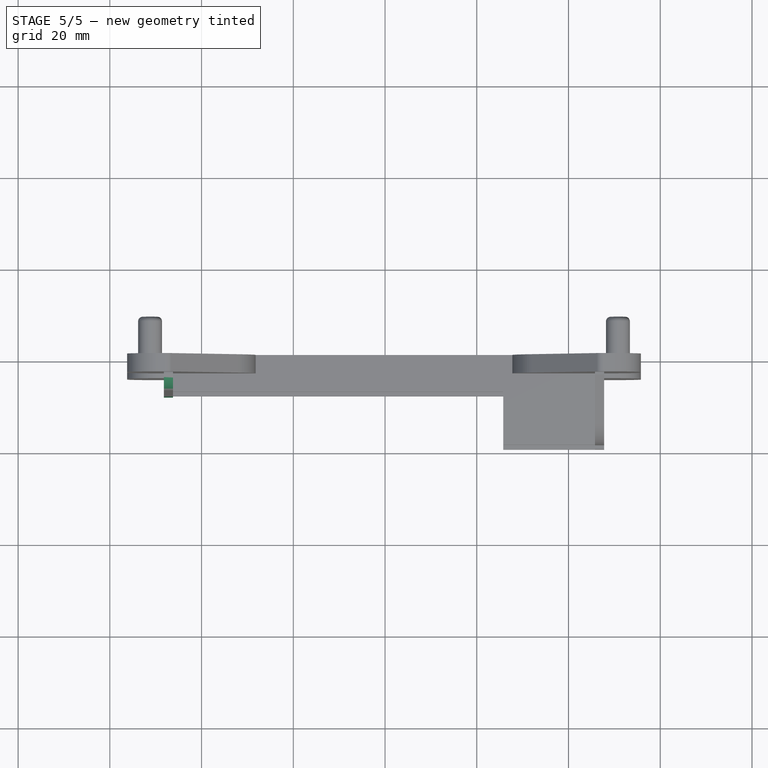
[diagram: stage 5 of 5 — top view after this stage's code; geometry added in this stage tinted green]
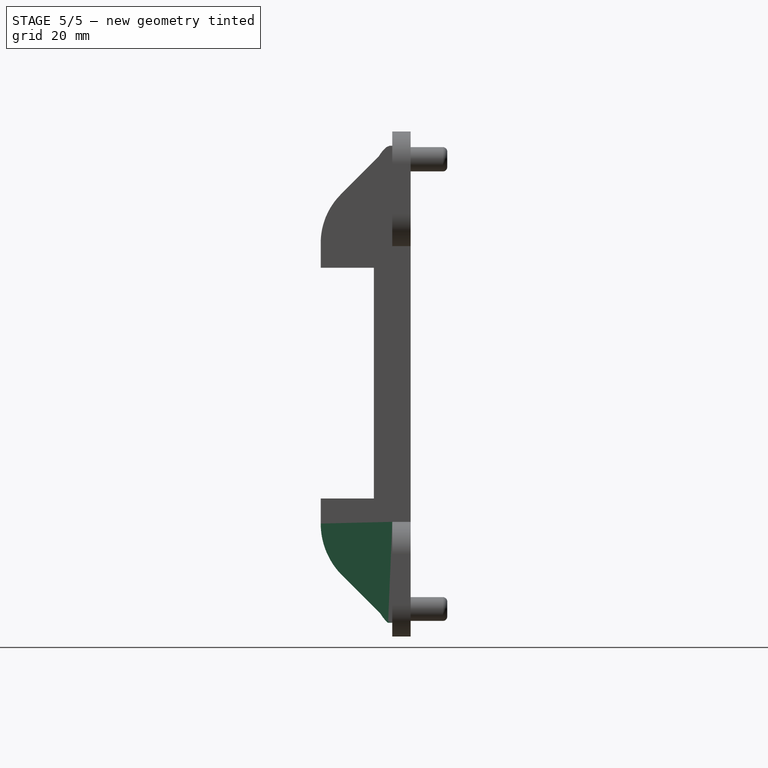
[diagram: stage 5 of 5 — right view after this stage's code; geometry added in this stage tinted green]
FEATURE [PartDesign::Chamfer] Chamfer005
  Angle = 45
  Base = -> Fillet020 [Edge131]
  BaseFeature = -> Fillet020
  ChamferType = 0
  FlipDirection = false
  Placement = pos=(0,0,0) rot=(1,0,0;1.5708rad)
  Size = 3
  Size2 = 1
  SupportTransform = false
FEATURE [PartDesign::Fillet] Fillet021
  Base = -> Chamfer005 [Edge9]
  BaseFeature = -> Chamfer005
  Placement = pos=(0,0,0) rot=(1,0,0;1.5708rad)
  Radius = 2
  SupportTransform = false
FEATURE [PartDesign::Fillet] Fillet022
  Base = -> Fillet021 [Edge8]
  BaseFeature = -> Fillet021
  Placement = pos=(0,0,0) rot=(1,0,0;1.5708rad)
  Radius = 8
  SupportTransform = false
FEATURE [Sketcher::SketchObject] Sketch012
  ExternalGeometry = -> [Fillet022]
  FullyConstrained = true
  MapMode = 5
  Placement = pos=(0,-3.336e-13,-60.1039) rot=(1,0,0;3.14159rad)
  Support = -> [Fillet022]
  sketch-geometry (8):
    g0: LineSegment StartX=45.773 StartY=19.6 StartZ=0 EndX=47.773 EndY=19.6 EndZ=0
    g1: LineSegment StartX=47.773 StartY=19.6 StartZ=0 EndX=47.773 EndY=4 EndZ=0
    g2: LineSegment StartX=47.773 StartY=4 StartZ=0 EndX=45.773 EndY=4 EndZ=0
    g3: LineSegment StartX=45.773 StartY=4 StartZ=0 EndX=45.773 EndY=19.6 EndZ=0
    g4: LineSegment StartX=-48.227 StartY=8 StartZ=0 EndX=-46.227 EndY=8 EndZ=0
    g5: LineSegment StartX=-46.227 StartY=8 StartZ=0 EndX=-46.227 EndY=4 EndZ=0
    g6: LineSegment StartX=-46.227 StartY=4 StartZ=0 EndX=-48.227 EndY=4 EndZ=0
    g7: LineSegment StartX=-48.227 StartY=4 StartZ=0 EndX=-48.227 EndY=8 EndZ=0
  constraints (24):
    c: Coincident(g0,g1)
    c: Coincident(g1,g2)
    c: Coincident(g2,g3)
    c: Coincident(g3,g0)
    c: Horizontal(g0)
    c: Horizontal(g2)
    c: Vertical(g1)
    c: Vertical(g3)
    c: DistanceY(g-3,g1) = 0
    c: DistanceX(g1,g-3) = 0
    c: DistanceY(g0,g-4) = 0
    c: DistanceX(g2,g2) = 2
    c: Coincident(g4,g5)
    c: Coincident(g5,g6)
    c: Coincident(g6,g7)
    c: Coincident(g7,g4)
    c: Horizontal(g4)
    c: Horizontal(g6)
    c: Vertical(g5)
    c: Vertical(g7)
    c: DistanceX(g-5,g4) = 0
    c: DistanceY(g4,g-5) = 0
    c: DistanceY(g-5,g6) = 0
    c: DistanceX(g6,g6) = 2
FEATURE [PartDesign::Pad] Pad007
  BaseFeature = -> Fillet022
  Direction = (1,1,1)
  Length = 22
  Length2 = 100
  Placement = pos=(0,0,0) rot=(1,0,0;1.5708rad)
  Profile = -> Sketch012
  Type = 0
FEATURE [PartDesign::Chamfer] Chamfer006
  Angle = 45
  Base = -> Pad007 [Edge244]
  BaseFeature = -> Pad007
  ChamferType = 0
  FlipDirection = false
  Placement = pos=(0,0,0) rot=(1,0,0;1.5708rad)
  Size = 15
  Size2 = 1
  SupportTransform = false
FEATURE [PartDesign::Fillet] Fillet023
  Base = -> Chamfer006 [Edge6]
  BaseFeature = -> Chamfer006
  Placement = pos=(0,0,0) rot=(1,0,0;1.5708rad)
  Radius = 16
  SupportTransform = false
FEATURE [PartDesign::Fillet] Fillet024
  Base = -> Fillet023 [Edge21]
  BaseFeature = -> Fillet023
  Placement = pos=(0,0,0) rot=(1,0,0;1.5708rad)
  Radius = 1
  SupportTransform = false
FEATURE [PartDesign::Chamfer] Chamfer007
  Angle = 45
  Base = -> Fillet024 [Edge152]
  BaseFeature = -> Fillet024
  ChamferType = 0
  FlipDirection = false
  Placement = pos=(0,0,0) rot=(1,0,0;1.5708rad)
  Size = 3
  Size2 = 1
  SupportTransform = false
FEATURE [PartDesign::Fillet] Fillet025
  Base = -> Chamfer007 [Edge7]
  BaseFeature = -> Chamfer007
  Placement = pos=(0,0,0) rot=(1,0,0;1.5708rad)
  Radius = 10
  SupportTransform = false
FEATURE [PartDesign::Body] Body
  Group = -> [Sketch,Pad,Sketch001,Pocket,Sketch002,Pocket001,Sketch003,Pocket002,Sketch004,Sketch005,Pocket003,Pocket004,Sketch006,Pad001,Sketch007,Pad002,Sketch008,Pad003,Sketch009,Pad004,Sketch010,Pad005,Fillet,Fillet001,Fillet002,Fillet003,Chamfer,Fillet004,Fillet005,Fillet006,Fillet007,Chamfer001,Fillet008,Fillet009,Fillet010,Fillet011,Chamfer002,Fillet012,Fillet013,Fillet014,Fillet015,Fillet016,Fillet017,+17 more]
  Origin = -> Origin
  Tip = -> Fillet025
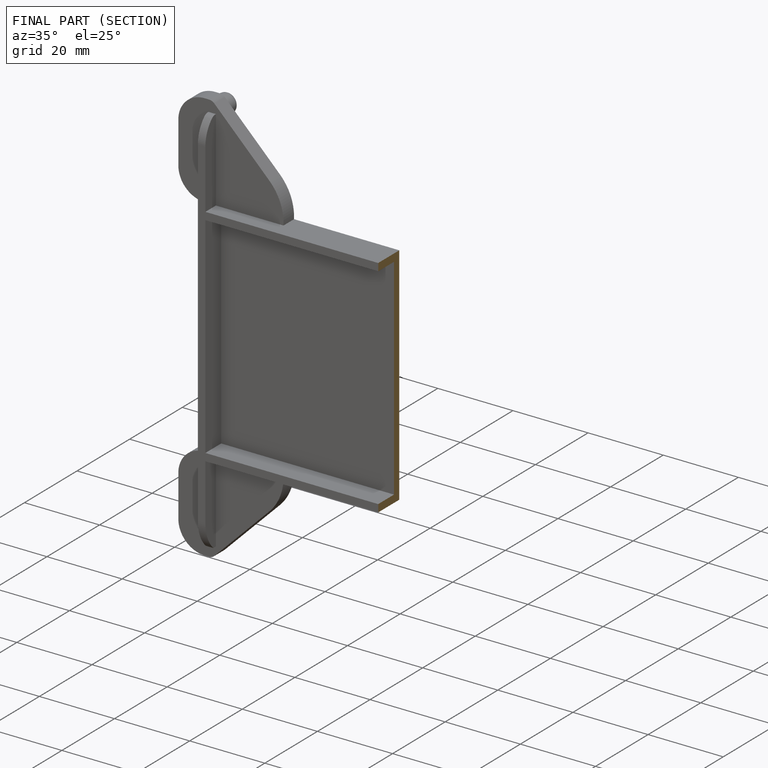
[diagram: finished part — half-section view (interior)]
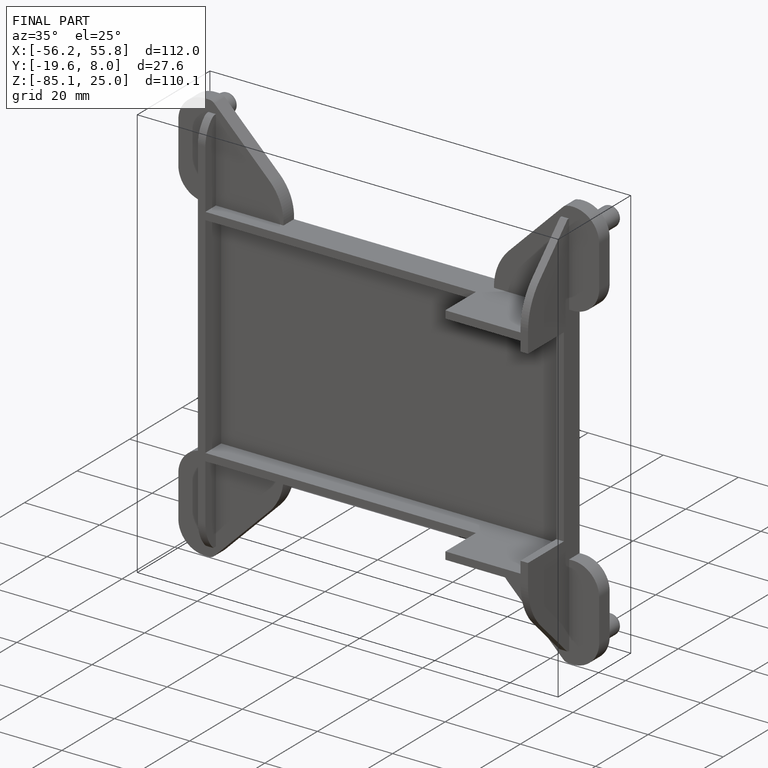
[diagram: finished part — iso view with bounding-box wireframe]
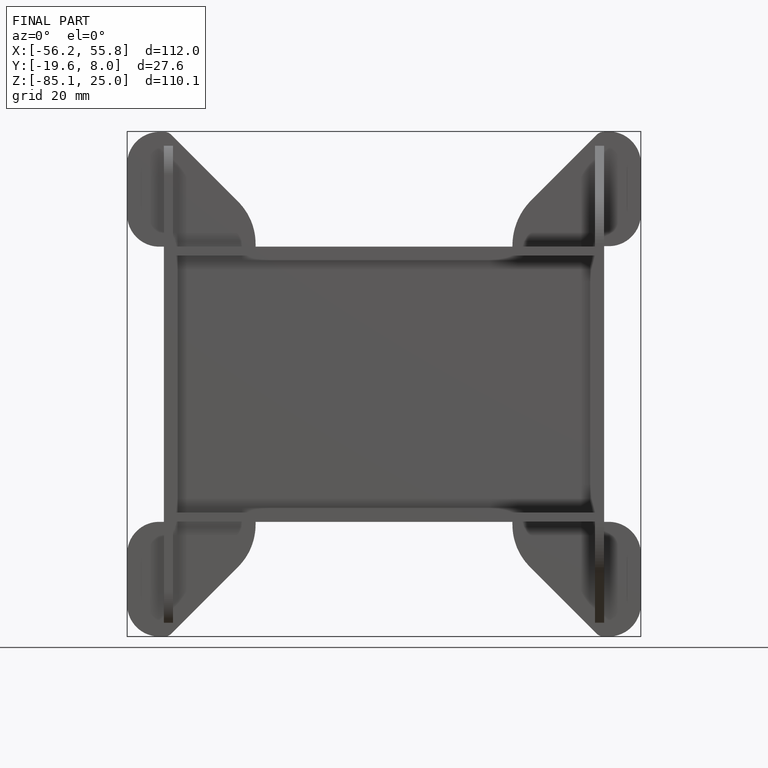
[diagram: finished part — front view with bounding-box wireframe]
